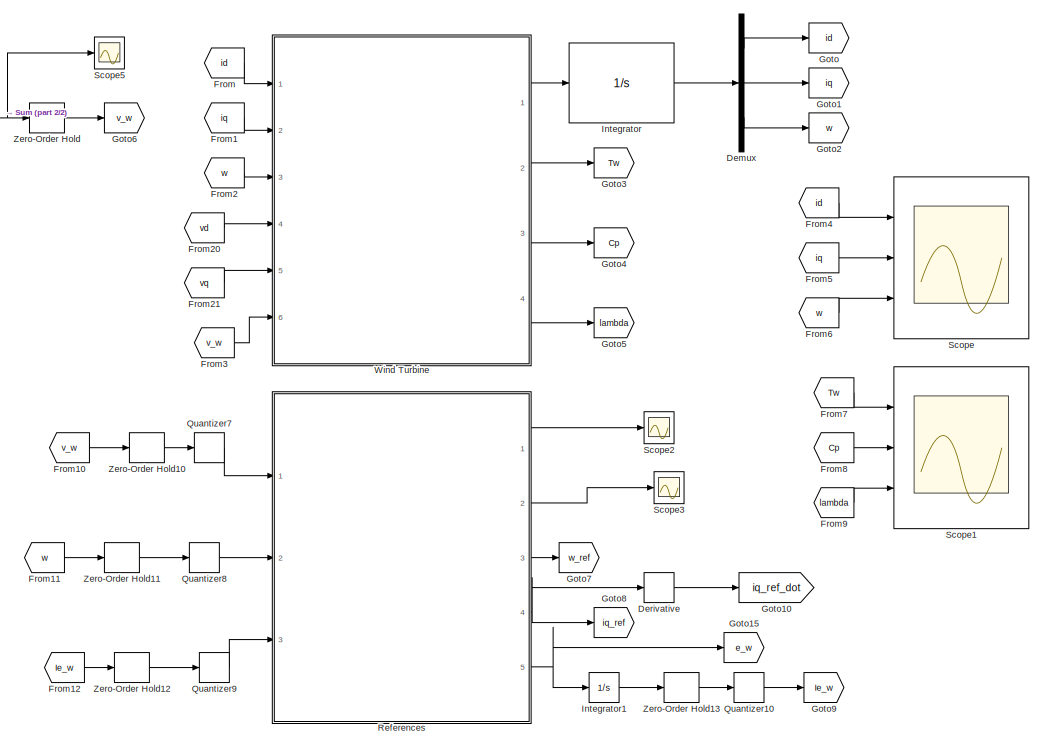
[diagram: root canvas - part 1/2, right side, full height]
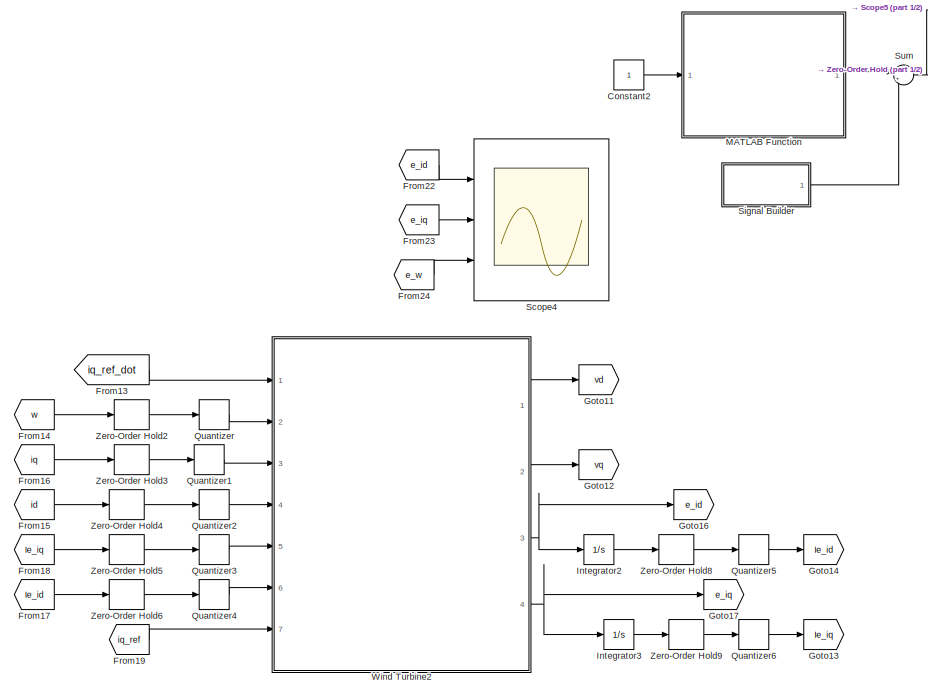
[diagram: root canvas - part 2/2, left side, full height]
MODEL slx_edd734319d47
KIND model
CONFIG AbsTol = auto
CONFIG EnableMultiTasking = off
CONFIG FixedStep = auto
CONFIG InitFcn = Start_Turbine
CONFIG MaxStep = auto
CONFIG MinStep = auto
CONFIG PreLoadFcn = Start_Turbine
CONFIG RelTol = 1e-3
CONFIG SampleTimeConstraint = Unconstrained
CONFIG Solver = VariableStepAuto
CONFIG SolverName = VariableStepAuto
CONFIG StartTime = 0.0
CONFIG StopTime = 20
BLOCK [Constant] Constant2
BLOCK [Demux] Demux
  Outputs = 3
  Ports = [1, 3]
BLOCK [Derivative] Derivative
BLOCK [From] From
  GotoTag = id
BLOCK [From] From1
  GotoTag = iq
BLOCK [From] From10
  GotoTag = v_w
BLOCK [From] From11
  GotoTag = w
BLOCK [From] From12
  GotoTag = Ie_w
BLOCK [From] From13
  GotoTag = iq_ref_dot
BLOCK [From] From14
  GotoTag = w
BLOCK [From] From15
  GotoTag = id
BLOCK [From] From16
  GotoTag = iq
BLOCK [From] From17
  GotoTag = Ie_id
BLOCK [From] From18
  GotoTag = Ie_iq
BLOCK [From] From19
  GotoTag = iq_ref
BLOCK [From] From2
  GotoTag = w
BLOCK [From] From20
  GotoTag = vd
BLOCK [From] From21
  GotoTag = vq
BLOCK [From] From22
  GotoTag = e_id
BLOCK [From] From23
  GotoTag = e_iq
BLOCK [From] From24
  GotoTag = e_w
BLOCK [From] From3
  GotoTag = v_w
BLOCK [From] From4
  GotoTag = id
BLOCK [From] From5
  GotoTag = iq
BLOCK [From] From6
  GotoTag = w
BLOCK [From] From7
  GotoTag = Tw
BLOCK [From] From8
  GotoTag = Cp
BLOCK [From] From9
  GotoTag = lambda
BLOCK [Goto] Goto
  GotoTag = id
BLOCK [Goto] Goto1
  GotoTag = iq
BLOCK [Goto] Goto10
  GotoTag = iq_ref_dot
BLOCK [Goto] Goto11
  GotoTag = vd
BLOCK [Goto] Goto12
  GotoTag = vq
BLOCK [Goto] Goto13
  GotoTag = Ie_iq
BLOCK [Goto] Goto14
  GotoTag = Ie_id
BLOCK [Goto] Goto15
  GotoTag = e_w
BLOCK [Goto] Goto16
  GotoTag = e_id
BLOCK [Goto] Goto17
  GotoTag = e_iq
BLOCK [Goto] Goto2
  GotoTag = w
BLOCK [Goto] Goto3
  GotoTag = Tw
BLOCK [Goto] Goto4
  GotoTag = Cp
BLOCK [Goto] Goto5
  GotoTag = lambda
BLOCK [Goto] Goto6
  GotoTag = v_w
BLOCK [Goto] Goto7
  GotoTag = w_ref
BLOCK [Goto] Goto8
  GotoTag = iq_ref
BLOCK [Goto] Goto9
  GotoTag = Ie_w
BLOCK [Integrator] Integrator
  InitialCondition = [id0;iq0;w0]
  Ports = [1, 1]
BLOCK [Integrator] Integrator1
  Ports = [1, 1]
BLOCK [Integrator] Integrator2
  Ports = [1, 1]
BLOCK [Integrator] Integrator3
  Ports = [1, 1]
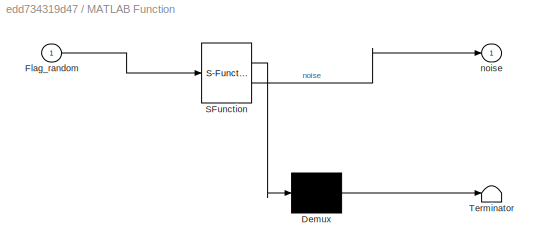
BLOCK [SubSystem] MATLAB Function
  ErrorFcn = Stateflow.Translate.translate
  PermitHierarchicalResolution = ExplicitOnly
  Ports = [1, 1]
  RequestExecContextInheritance = off
  SFBlockType = MATLAB Function
  TreatAsAtomicUnit = on
BLOCK [Demux] MATLAB Function/ Demux 
  Outputs = 1
  Ports = [1, 1]
BLOCK [S-Function] MATLAB Function/ SFunction 
  EnableBusSupport = on
  FunctionName = sf_sfun
  PortCounts = [1 2]
  Ports = [1, 2]
  SFcnIsStateOwnerBlock = off
  SFunctionDeploymentMode = off
  Tag = Stateflow S-Function 1
BLOCK [Terminator] MATLAB Function/ Terminator 
BLOCK [Inport] MATLAB Function/Flag_random
BLOCK [Outport] MATLAB Function/noise
BLOCK [Quantizer] Quantizer
  QuantizationInterval = quantization_error
BLOCK [Quantizer] Quantizer1
  QuantizationInterval = quantization_error
BLOCK [Quantizer] Quantizer10
  QuantizationInterval = quantization_error
BLOCK [Quantizer] Quantizer2
  QuantizationInterval = quantization_error
BLOCK [Quantizer] Quantizer3
  QuantizationInterval = quantization_error
BLOCK [Quantizer] Quantizer4
  QuantizationInterval = quantization_error
BLOCK [Quantizer] Quantizer5
  QuantizationInterval = quantization_error
BLOCK [Quantizer] Quantizer6
  QuantizationInterval = quantization_error
BLOCK [Quantizer] Quantizer7
  QuantizationInterval = quantization_error
BLOCK [Quantizer] Quantizer8
  QuantizationInterval = quantization_error
BLOCK [Quantizer] Quantizer9
  QuantizationInterval = quantization_error
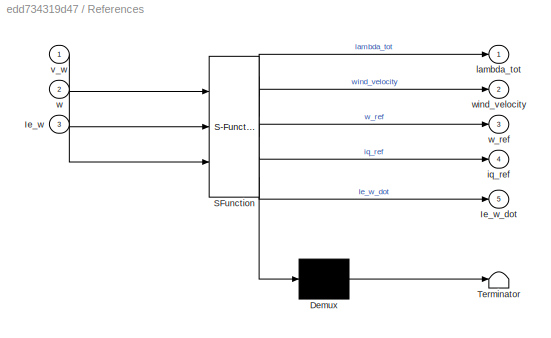
BLOCK [SubSystem] References
  ErrorFcn = Stateflow.Translate.translate
  PermitHierarchicalResolution = ExplicitOnly
  Ports = [3, 5]
  RequestExecContextInheritance = off
  SFBlockType = MATLAB Function
  TreatAsAtomicUnit = on
BLOCK [Demux] References/ Demux 
  Outputs = 1
  Ports = [1, 1]
BLOCK [S-Function] References/ SFunction 
  EnableBusSupport = on
  FunctionName = sf_sfun
  PortCounts = [3 6]
  Ports = [3, 6]
  SFcnIsStateOwnerBlock = off
  SFunctionDeploymentMode = off
  Tag = Stateflow S-Function 3
BLOCK [Terminator] References/ Terminator 
BLOCK [Inport] References/Ie_w
  Port = 3
BLOCK [Outport] References/Ie_w_dot
  Port = 5
BLOCK [Outport] References/iq_ref
  Port = 4
BLOCK [Outport] References/lambda_tot
BLOCK [Inport] References/v_w
BLOCK [Inport] References/w
  Port = 2
BLOCK [Outport] References/w_ref
  Port = 3
BLOCK [Outport] References/wind_velocity
  Port = 2
BLOCK [Scope] Scope
  Floating = off
  NumInputPorts = 3
  Ports = [3]
  ScopeSpecificationString = Simulink.scopes.TimeScopeBlockCfg('CurrentConfiguration', extmgr.ConfigurationSet(extmgr.Configuration('Core','General UI',true,'FigureColor',[1 1 1]),extmgr.Configuration('Core','Source UI',true),extmgr.Configuration('Sources','WiredSimulink',true),extmgr.Configuration('Visuals','Time Domain',true,'SerializedDisplays',{struct('MinYLimReal','-34.32316','MaxYLimReal','30.88666','YLabelReal','','Min...<+3587ch>
BLOCK [Scope] Scope1
  Floating = off
  NumInputPorts = 3
  Ports = [3]
  ScopeSpecificationString = Simulink.scopes.TimeScopeBlockCfg('CurrentConfiguration', extmgr.ConfigurationSet(extmgr.Configuration('Core','General UI',true,'FigureColor',[1 1 1]),extmgr.Configuration('Core','Source UI',true),extmgr.Configuration('Sources','WiredSimulink',true,'DataLoggingVariableName','ScopeData1'),extmgr.Configuration('Visuals','Time Domain',true,'SerializedDisplays',{struct('MinYLimReal','-115403.3635','Ma...<+3632ch>
BLOCK [Scope] Scope2
  Floating = off
  NumInputPorts = 1
  Ports = [1]
  ScopeSpecificationString = Simulink.scopes.TimeScopeBlockCfg('CurrentConfiguration', extmgr.ConfigurationSet(extmgr.Configuration('Core','General UI',true),extmgr.Configuration('Core','Source UI',true),extmgr.Configuration('Sources','WiredSimulink',true,'DataLoggingVariableName','ScopeData1'),extmgr.Configuration('Visuals','Time Domain',true,'SerializedDisplays',{struct('MinYLimReal','8.09262','MaxYLimReal','8.11077','YLabe...<+1479ch>
BLOCK [Scope] Scope3
  Floating = off
  NumInputPorts = 1
  Ports = [1]
  ScopeSpecificationString = Simulink.scopes.TimeScopeBlockCfg('CurrentConfiguration', extmgr.ConfigurationSet(extmgr.Configuration('Core','General UI',true),extmgr.Configuration('Core','Source UI',true),extmgr.Configuration('Sources','WiredSimulink',true,'DataLoggingVariableName','ScopeData2'),extmgr.Configuration('Visuals','Time Domain',true,'SerializedDisplays',{struct('MinYLimReal','6.60279','MaxYLimReal','10.07488','YLab...<+1489ch>
BLOCK [Scope] Scope4
  Floating = off
  NumInputPorts = 3
  Ports = [3]
  ScopeSpecificationString = Simulink.scopes.TimeScopeBlockCfg('CurrentConfiguration', extmgr.ConfigurationSet(extmgr.Configuration('Core','General UI',true,'FigureColor',[1 1 1]),extmgr.Configuration('Core','Source UI',true),extmgr.Configuration('Sources','WiredSimulink',true,'DataLoggingVariableName','ScopeData1'),extmgr.Configuration('Visuals','Time Domain',true,'SerializedDisplays',{struct('MinYLimReal','-34.2555','MaxYLi...<+3680ch>
BLOCK [Scope] Scope5
  Floating = off
  NumInputPorts = 1
  Ports = [1]
  ScopeSpecificationString = Simulink.scopes.TimeScopeBlockCfg('CurrentConfiguration', extmgr.ConfigurationSet(extmgr.Configuration('Core','General UI',true),extmgr.Configuration('Core','Source UI',true),extmgr.Configuration('Sources','WiredSimulink',true,'DataLoggingVariableName','ScopeData2'),extmgr.Configuration('Visuals','Time Domain',true,'SerializedDisplays',{struct('MinYLimReal','6.7','MaxYLimReal','9.7','YLabelReal','...<+1401ch>
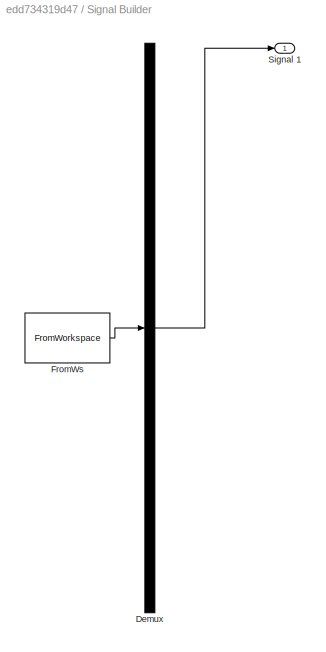
BLOCK [SubSystem] Signal Builder
  ClipboardFcn = sigbuilder_block('clipboard');
  CloseFcn = sigbuilder_block('close');
  ContinueFcn = sigbuilder_block('continue');
  CopyFcn = sigbuilder_block('copy');
  DeleteFcn = sigbuilder_block('delete');
  LoadFcn = sigbuilder_block('load');
  MaskHideContents = on
  ModelCloseFcn = sigbuilder_block('modelClose');
  NameChangeFcn = sigbuilder_block('namechange');
  OpenFcn = sigbuilder_block('open',[5.4 33 1141.2 514.8 ]);
  PauseFcn = sigbuilder_block('pause');
  Ports = [0, 1]
  PreSaveFcn = sigbuilder_block('preSave');
  RequestExecContextInheritance = off
  StartFcn = sigbuilder_block('start');
  StopFcn = sigbuilder_block('stop');
  Tag = STV Subsys
BLOCK [Demux] Signal Builder/Demux
  DisplayOption = none
  Outputs = 1
  Ports = [1, 1]
  Tag = STV Demux
BLOCK [FromWorkspace] Signal Builder/FromWs
  Tag = STV FromWs
  VariableName = tuvar
BLOCK [Outport] Signal Builder/Signal 1
  Tag = STV Outport
BLOCK [Sum] Sum
  Inputs = |++
  Ports = [2, 1]
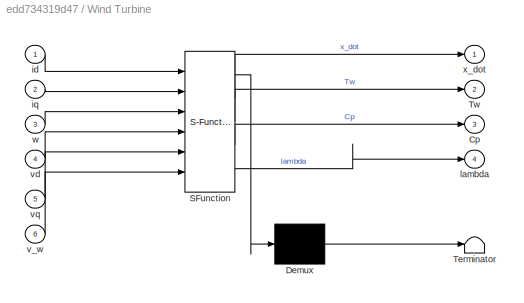
BLOCK [SubSystem] Wind Turbine
  ErrorFcn = Stateflow.Translate.translate
  PermitHierarchicalResolution = ExplicitOnly
  Ports = [6, 4]
  RequestExecContextInheritance = off
  SFBlockType = MATLAB Function
  TreatAsAtomicUnit = on
BLOCK [Demux] Wind Turbine/ Demux 
  Outputs = 1
  Ports = [1, 1]
BLOCK [S-Function] Wind Turbine/ SFunction 
  EnableBusSupport = on
  FunctionName = sf_sfun
  PortCounts = [6 5]
  Ports = [6, 5]
  SFcnIsStateOwnerBlock = off
  SFunctionDeploymentMode = off
  Tag = Stateflow S-Function 2
BLOCK [Terminator] Wind Turbine/ Terminator 
BLOCK [Outport] Wind Turbine/Cp
  Port = 3
BLOCK [Outport] Wind Turbine/Tw
  Port = 2
BLOCK [Inport] Wind Turbine/id
BLOCK [Inport] Wind Turbine/iq
  Port = 2
BLOCK [Outport] Wind Turbine/lambda
  Port = 4
BLOCK [Inport] Wind Turbine/v_w
  Port = 6
BLOCK [Inport] Wind Turbine/vd
  Port = 4
BLOCK [Inport] Wind Turbine/vq
  Port = 5
BLOCK [Inport] Wind Turbine/w
  Port = 3
BLOCK [Outport] Wind Turbine/x_dot
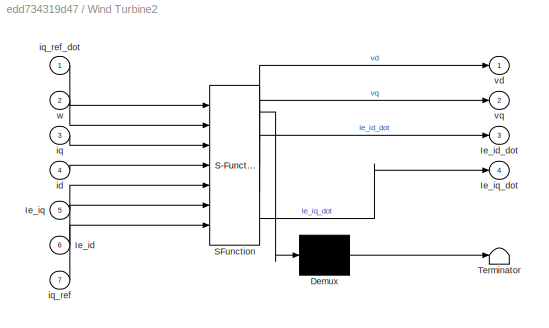
BLOCK [SubSystem] Wind Turbine2
  ErrorFcn = Stateflow.Translate.translate
  PermitHierarchicalResolution = ExplicitOnly
  Ports = [7, 4]
  RequestExecContextInheritance = off
  SFBlockType = MATLAB Function
  TreatAsAtomicUnit = on
BLOCK [Demux] Wind Turbine2/ Demux 
  Outputs = 1
  Ports = [1, 1]
BLOCK [S-Function] Wind Turbine2/ SFunction 
  EnableBusSupport = on
  FunctionName = sf_sfun
  PortCounts = [7 5]
  Ports = [7, 5]
  SFcnIsStateOwnerBlock = off
  SFunctionDeploymentMode = off
  Tag = Stateflow S-Function 4
BLOCK [Terminator] Wind Turbine2/ Terminator 
BLOCK [Inport] Wind Turbine2/Ie_id
  Port = 6
BLOCK [Outport] Wind Turbine2/Ie_id_dot
  Port = 3
BLOCK [Inport] Wind Turbine2/Ie_iq
  Port = 5
BLOCK [Outport] Wind Turbine2/Ie_iq_dot
  Port = 4
BLOCK [Inport] Wind Turbine2/id
  Port = 4
BLOCK [Inport] Wind Turbine2/iq
  Port = 3
BLOCK [Inport] Wind Turbine2/iq_ref
  Port = 7
BLOCK [Inport] Wind Turbine2/iq_ref_dot
BLOCK [Outport] Wind Turbine2/vd
BLOCK [Outport] Wind Turbine2/vq
  Port = 2
BLOCK [Inport] Wind Turbine2/w
  Port = 2
BLOCK [ZeroOrderHold] Zero-Order Hold
  SampleTime = sampling
BLOCK [ZeroOrderHold] Zero-Order Hold10
  SampleTime = sampling
BLOCK [ZeroOrderHold] Zero-Order Hold11
  SampleTime = sampling
BLOCK [ZeroOrderHold] Zero-Order Hold12
  SampleTime = sampling
BLOCK [ZeroOrderHold] Zero-Order Hold13
  SampleTime = sampling
BLOCK [ZeroOrderHold] Zero-Order Hold2
  SampleTime = sampling
BLOCK [ZeroOrderHold] Zero-Order Hold3
  SampleTime = sampling
BLOCK [ZeroOrderHold] Zero-Order Hold4
  SampleTime = sampling
BLOCK [ZeroOrderHold] Zero-Order Hold5
  SampleTime = sampling
BLOCK [ZeroOrderHold] Zero-Order Hold6
  SampleTime = sampling
BLOCK [ZeroOrderHold] Zero-Order Hold8
  SampleTime = sampling
BLOCK [ZeroOrderHold] Zero-Order Hold9
  SampleTime = sampling
LINE Constant2:1 -> MATLAB Function:1
LINE Demux:1 -> Goto:1
LINE Demux:2 -> Goto1:1
LINE Demux:3 -> Goto2:1
LINE Derivative:1 -> Goto10:1
LINE From10:1 -> Zero-Order Hold10:1
LINE From11:1 -> Zero-Order Hold11:1
LINE From12:1 -> Zero-Order Hold12:1
LINE From13:1 -> Wind Turbine2:1
LINE From14:1 -> Zero-Order Hold2:1
LINE From15:1 -> Zero-Order Hold4:1
LINE From16:1 -> Zero-Order Hold3:1
LINE From17:1 -> Zero-Order Hold6:1
LINE From18:1 -> Zero-Order Hold5:1
LINE From19:1 -> Wind Turbine2:7
LINE From1:1 -> Wind Turbine:2
LINE From20:1 -> Wind Turbine:4
LINE From21:1 -> Wind Turbine:5
LINE From22:1 -> Scope4:1
LINE From23:1 -> Scope4:2
LINE From24:1 -> Scope4:3
LINE From2:1 -> Wind Turbine:3
LINE From3:1 -> Wind Turbine:6
LINE From4:1 -> Scope:1
LINE From5:1 -> Scope:2
LINE From6:1 -> Scope:3
LINE From7:1 -> Scope1:1
LINE From8:1 -> Scope1:2
LINE From9:1 -> Scope1:3
LINE From:1 -> Wind Turbine:1
LINE Integrator1:1 -> Zero-Order Hold13:1
LINE Integrator2:1 -> Zero-Order Hold8:1
LINE Integrator3:1 -> Zero-Order Hold9:1
LINE Integrator:1 -> Demux:1
LINE MATLAB Function:1 -> Sum:1
LINE Quantizer10:1 -> Goto9:1
LINE Quantizer1:1 -> Wind Turbine2:3
LINE Quantizer2:1 -> Wind Turbine2:4
LINE Quantizer3:1 -> Wind Turbine2:5
LINE Quantizer4:1 -> Wind Turbine2:6
LINE Quantizer5:1 -> Goto14:1
LINE Quantizer6:1 -> Goto13:1
LINE Quantizer7:1 -> References:1
LINE Quantizer8:1 -> References:2
LINE Quantizer9:1 -> References:3
LINE Quantizer:1 -> Wind Turbine2:2
LINE References:1 -> Scope2:1
LINE References:2 -> Scope3:1
LINE References:3 -> Goto7:1
NET References:4 -> Derivative:1, Goto8:1
NET References:5 -> Goto15:1, Integrator1:1
LINE Signal Builder:1 -> Sum:2
NET Sum:1 -> Scope5:1, Zero-Order Hold:1
LINE Wind Turbine2:1 -> Goto11:1
LINE Wind Turbine2:2 -> Goto12:1
NET Wind Turbine2:3 -> Goto16:1, Integrator2:1
NET Wind Turbine2:4 -> Goto17:1, Integrator3:1
LINE Wind Turbine:1 -> Integrator:1
LINE Wind Turbine:2 -> Goto3:1
LINE Wind Turbine:3 -> Goto4:1
LINE Wind Turbine:4 -> Goto5:1
LINE Zero-Order Hold10:1 -> Quantizer7:1
LINE Zero-Order Hold11:1 -> Quantizer8:1
LINE Zero-Order Hold12:1 -> Quantizer9:1
LINE Zero-Order Hold13:1 -> Quantizer10:1
LINE Zero-Order Hold2:1 -> Quantizer:1
LINE Zero-Order Hold3:1 -> Quantizer1:1
LINE Zero-Order Hold4:1 -> Quantizer2:1
LINE Zero-Order Hold5:1 -> Quantizer3:1
LINE Zero-Order Hold6:1 -> Quantizer4:1
LINE Zero-Order Hold8:1 -> Quantizer5:1
LINE Zero-Order Hold9:1 -> Quantizer6:1
LINE Zero-Order Hold:1 -> Goto6:1
note: NET lines group one-source signal fan-out (src -> all destinations, sorted); 1:1 wires keep LINE
CHART MATLAB Function states=1 transitions=1
  STATE_LABEL 'eML_blk_kernel()'
  STATE_LABEL 'SCRIPT:\nfunction noise  = wind_noise(Flag_random)\nnoise=Flag_random*0.005*randi([-10,10]);\nend\n'
CHART Wind Turbine states=1 transitions=1
  STATE_LABEL 'eML_blk_kernel()'
  STATE_LABEL "SCRIPT:\nfunction [x_dot,Tw,Cp,lambda] = model(id,iq,w,vd,vq,v_w)\n%#eml\neml.extrinsic('evalin');\n\n% Loading parameters from workspace\n% Initialization\n\nR=0;\nRs=0;\nL=0;\nphim=0;\np=0;\nJ=0;\nf=0;\nkm=0;\nc1=0;\nc2=0;\nc3=0;\nc4=0;\nc5=0;\nc6=0;\nrho=0;\n\n% Take the parameters from the workspace\n\nR=evalin('base','R');\nRs=evalin('base','Rs');\nL=evalin('base','L');\nphim=evalin('base','phim');\np=evalin('base','p');\n...<+630ch>"
CHART References states=1 transitions=1
  STATE_LABEL 'eML_blk_kernel()'
  STATE_LABEL "SCRIPT:\nfunction [lambda_tot,wind_velocity,w_ref,iq_ref,Ie_w_dot] = reference_generator(v_w,w,Ie_w)\n%#eml\neml.extrinsic('evalin');\n\n% Loading parameters from workspace\n% Initialization\n\n\n\nR=0;\nRs=0;\nL=0;\nphim=0;\np=0;\nJ=0;\nf=0;\nkm=0;\nc1=0;\nc2=0;\nc3=0;\nc4=0;\nc5=0;\nc6=0;\nrho=0;\nlambda_max=0;\n\n% Take the parameters from the workspace\n\nR=evalin('base','R');\nRs=evalin('base','Rs');\nL=evalin('base','L');...<+1890ch>"
CHART Wind Turbine2 states=1 transitions=1
  STATE_LABEL 'eML_blk_kernel()'
  STATE_LABEL "SCRIPT:\nfunction [vd,vq,Ie_id_dot,Ie_iq_dot] = controller(iq_ref_dot,w,iq,id,Ie_iq,Ie_id,iq_ref)\n%#eml\neml.extrinsic('evalin');\n\n% Loading parameters from workspace\n% Initialization\n\n\n\nR=0;\nRs=0;\nL=0;\nphim=0;\np=0;\nJ=0;\nf=0;\nkm=0;\nc1=0;\nc2=0;\nc3=0;\nc4=0;\nc5=0;\nc6=0;\nrho=0;\nlambda_max=0;\n\n% Take the parameters from the workspace\n\nR=evalin('base','R');\nRs=evalin('base','Rs');\nL=evalin('base','L');\nph...<+596ch>"
CHART  states=0 transitions=0
CHART  states=0 transitions=0
CHART  states=0 transitions=0
CHART  states=0 transitions=0
